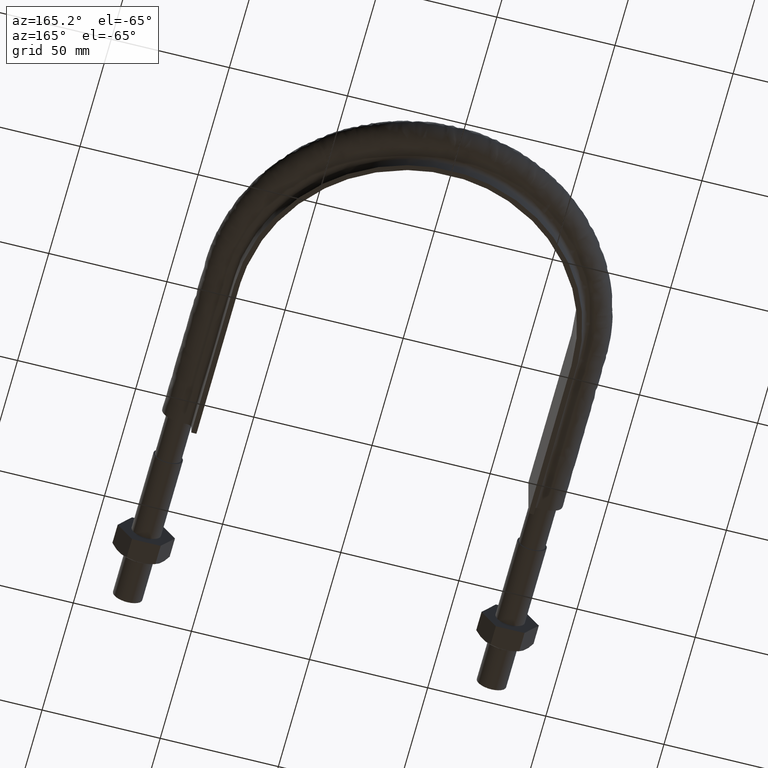
[diagram: clean part render]
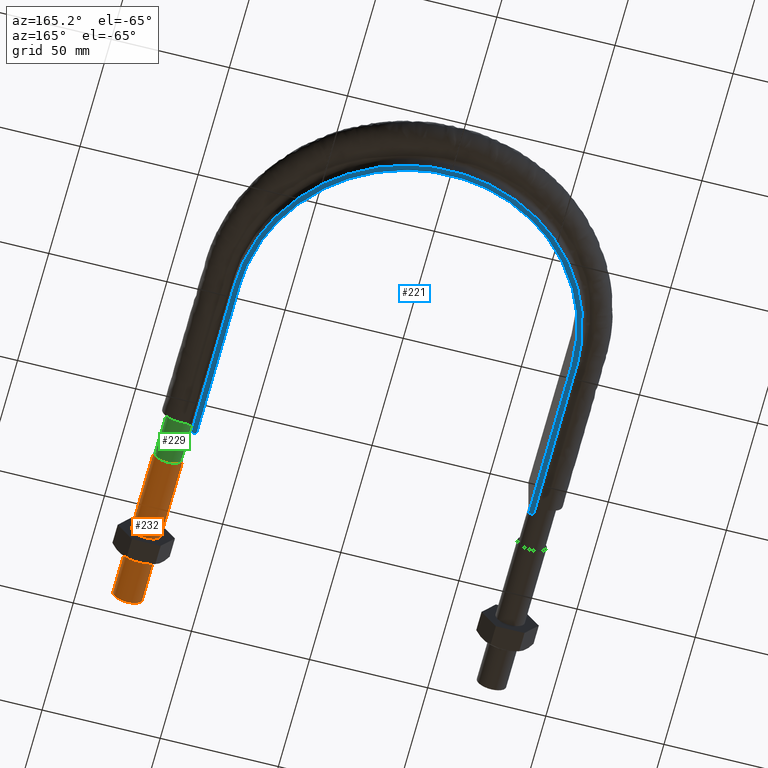
[diagram: same view with three faces highlighted in distinct colors, each labeled with its STEP entity id]
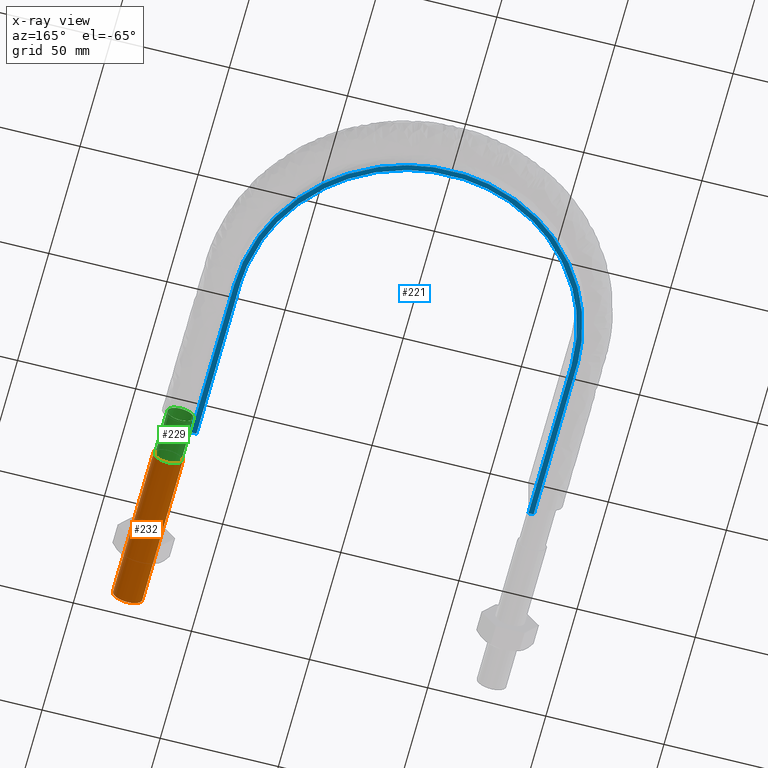
[diagram: x-ray of the same camera — body ghosted, the three highlighted faces saturated]
A machine part, auxiliary view with three faces highlighted in distinct colors.
The next image is the same camera in x-ray (body ghosted, the three faces saturated) — at least one of them is partly hidden behind the body in this view.
Their STEP definitions:

[orange] entity #232 — the highlighted cylindrical surface (bore or boss wall) has radius 6.25 mm, axis along (0, 1, -0).
#232 = ADVANCED_FACE( '', ( #295, #296 ), #297, .T. );
#295 = FACE_OUTER_BOUND( '', #1243, .T. );
#296 = FACE_OUTER_BOUND( '', #1244, .T. );
#297 = CYLINDRICAL_SURFACE( '', #1245, 6.25000000000001 );
#1243 = EDGE_LOOP( '', ( #1422 ) );
#1244 = EDGE_LOOP( '', ( #1423 ) );
#1245 = AXIS2_PLACEMENT_3D( '', #1424, #1425, #1426 );
#1422 = ORIENTED_EDGE( '', *, *, #1633, .T. );
#1423 = ORIENTED_EDGE( '', *, *, #1634, .F. );
#1424 = CARTESIAN_POINT( '', ( 77.0000000000000, 65.0000000000000, -1.98998532496136E-014 ) );
#1425 = DIRECTION( '', ( 2.44921270764475E-016, 1.00000000000000, -3.06151588455594E-016 ) );
#1426 = DIRECTION( '', ( 1.00000000000000, -2.44921270764475E-016, 0.000000000000000 ) );
#1633 = EDGE_CURVE( '', #1745, #1745, #1746, .T. );
#1634 = EDGE_CURVE( '', #1747, #1747, #1748, .T. );
#1745 = VERTEX_POINT( '', #2087 );
#1746 = CIRCLE( '', #2088, 6.25000000000001 );
#1747 = VERTEX_POINT( '', #2089 );
#1748 = CIRCLE( '', #2090, 6.25000000000001 );
#2087 = CARTESIAN_POINT( '', ( 77.0000000000000, 65.0000000000000, -6.25000000000003 ) );
#2088 = AXIS2_PLACEMENT_3D( '', #2345, #2346, #2347 );
#2089 = CARTESIAN_POINT( '', ( 77.0000000000000, -1.57912352356619E-014, -6.25000000000001 ) );
#2090 = AXIS2_PLACEMENT_3D( '', #2348, #2349, #2350 );
#2345 = CARTESIAN_POINT( '', ( 77.0000000000000, 65.0000000000000, -1.98998532496136E-014 ) );
#2346 = DIRECTION( '', ( -2.44921270764475E-016, -1.00000000000000, 3.06151588455594E-016 ) );
#2347 = DIRECTION( '', ( 0.000000000000000, -3.06151588455594E-016, -1.00000000000000 ) );
#2348 = CARTESIAN_POINT( '', ( 77.0000000000000, -1.38777878078145E-014, 1.23259516440783E-029 ) );
#2349 = DIRECTION( '', ( -2.44921270764475E-016, -1.00000000000000, 3.06151588455594E-016 ) );
#2350 = DIRECTION( '', ( 0.000000000000000, -3.06151588455594E-016, -1.00000000000000 ) );

[blue] entity #221 — the highlighted planar face has unit normal (0, 0, 1).
#221 = ADVANCED_FACE( '', ( #266 ), #267, .F. );
#266 = FACE_OUTER_BOUND( '', #543, .T. );
#267 = PLANE( '', #544 );
#543 = EDGE_LOOP( '', ( #1320, #1321, #1322, #1323 ) );
#544 = AXIS2_PLACEMENT_3D( '', #1324, #1325, #1326 );
#1320 = ORIENTED_EDGE( '', *, *, #1605, .F. );
#1321 = ORIENTED_EDGE( '', *, *, #1602, .F. );
#1322 = ORIENTED_EDGE( '', *, *, #1606, .F. );
#1323 = ORIENTED_EDGE( '', *, *, #1607, .F. );
#1324 = CARTESIAN_POINT( '', ( 100.000000000000, 284.710000000000, -15.0000000000000 ) );
#1325 = DIRECTION( '', ( 0.000000000000000, 0.000000000000000, 1.00000000000000 ) );
#1326 = DIRECTION( '', ( 1.00000000000000, 0.000000000000000, 0.000000000000000 ) );
#1602 = EDGE_CURVE( '', #1686, #1681, #1688, .T. );
#1605 = EDGE_CURVE( '', #1681, #1693, #1694, .T. );
#1606 = EDGE_CURVE( '', #1695, #1686, #1696, .T. );
#1607 = EDGE_CURVE( '', #1693, #1695, #1697, .T. );
#1681 = VERTEX_POINT( '', #1829 );
#1686 = VERTEX_POINT( '', #1836 );
#1688 = LINE( '', #1868, #1869 );
#1693 = VERTEX_POINT( '', #1894 );
#1694 = B_SPLINE_CURVE_WITH_KNOTS( '', 3, ( #1895, #1896, #1897, #1898, #1899, #1900, #1901, #1902, #1903, #1904, #1905, #1906, #1907, #1908, #1909, #1910 ), .UNSPECIFIED., .F., .F., ( 4, 3, 1, 1, 1, 1, 1, 1, 3, 4 ), ( -9.00000000000000, -8.00000000000000, -7.00000000000000, -6.00000000000000, -5.00000000000000, -4.00000000000000, -3.00000000000000, -2.00000000000000, -1.00000000000000, 0.000000000000000 ), .UNSPECIFIED. );
#1695 = VERTEX_POINT( '', #1911 );
#1696 = B_SPLINE_CURVE_WITH_KNOTS( '', 3, ( #1912, #1913, #1914, #1915, #1916, #1917, #1918, #1919, #1920, #1921, #1922, #1923, #1924, #1925, #1926, #1927 ), .UNSPECIFIED., .F., .F., ( 4, 3, 1, 1, 1, 1, 1, 1, 3, 4 ), ( 0.000000000000000, 1.00000000000000, 2.00000000000000, 3.00000000000000, 4.00000000000000, 5.00000000000000, 6.00000000000000, 7.00000000000000, 8.00000000000000, 9.00000000000000 ), .UNSPECIFIED. );
#1697 = LINE( '', #1928, #1929 );
#1829 = CARTESIAN_POINT( '', ( -70.2500000000000, 84.7100000000000, -15.0000000000000 ) );
#1836 = CARTESIAN_POINT( '', ( -72.4500000000000, 84.7100000000000, -15.0000000000000 ) );
#1868 = CARTESIAN_POINT( '', ( -100.000000000000, 84.7100000000000, -15.0000000000000 ) );
#1869 = VECTOR( '', #2329, 1000.00000000000 );
#1894 = CARTESIAN_POINT( '', ( 70.2500000000000, 84.7100000000000, -15.0000000000000 ) );
#1895 = CARTESIAN_POINT( '', ( -70.2500000000000, 84.7100000000000, -15.0000000000000 ) );
#1896 = CARTESIAN_POINT( '', ( -70.2500000000000, 107.726666666667, -15.0000000000000 ) );
#1897 = CARTESIAN_POINT( '', ( -70.2500000000000, 130.743333333333, -15.0000000000000 ) );
#1898 = CARTESIAN_POINT( '', ( -70.2500000000000, 153.760000000000, -15.0000000000000 ) );
#1899 = CARTESIAN_POINT( '', ( -70.2500000000000, 164.249418134732, -15.0000000000000 ) );
#1900 = CARTESIAN_POINT( '', ( -65.4537147955432, 185.288971927909, -15.0000000000000 ) );
#1901 = CARTESIAN_POINT( '', ( -45.2953760364684, 210.556467088273, -15.0000000000000 ) );
#1902 = CARTESIAN_POINT( '', ( -16.1657325420394, 224.587129579273, -15.0000000000000 ) );
#1903 = CARTESIAN_POINT( '', ( 16.1657325420395, 224.587129579273, -15.0000000000000 ) );
#1904 = CARTESIAN_POINT( '', ( 45.2953760364684, 210.556467088273, -15.0000000000000 ) );
#1905 = CARTESIAN_POINT( '', ( 65.4537147955432, 185.288971927909, -15.0000000000000 ) );
#1906 = CARTESIAN_POINT( '', ( 70.2500000000000, 164.249418134732, -15.0000000000000 ) );
#1907 = CARTESIAN_POINT( '', ( 70.2500000000000, 153.760000000000, -15.0000000000000 ) );
#1908 = CARTESIAN_POINT( '', ( 70.2500000000000, 130.743333333333, -15.0000000000000 ) );
#1909 = CARTESIAN_POINT( '', ( 70.2500000000000, 107.726666666667, -15.0000000000000 ) );
#1910 = CARTESIAN_POINT( '', ( 70.2500000000000, 84.7100000000000, -15.0000000000000 ) );
#1911 = CARTESIAN_POINT( '', ( 72.4500000000000, 84.7100000000000, -15.0000000000000 ) );
#1912 = CARTESIAN_POINT( '', ( 72.4500000000000, 84.7100000000000, -15.0000000000000 ) );
#1913 = CARTESIAN_POINT( '', ( 72.4500000000000, 107.726666666667, -15.0000000000000 ) );
#1914 = CARTESIAN_POINT( '', ( 72.4500000000000, 130.743333333333, -15.0000000000000 ) );
#1915 = CARTESIAN_POINT( '', ( 72.4500000000000, 153.760000000000, -15.0000000000000 ) );
#1916 = CARTESIAN_POINT( '', ( 72.4500000000000, 164.584175230504, -15.0000000000000 ) );
#1917 = CARTESIAN_POINT( '', ( 67.5035108460798, 186.273453800089, -15.0000000000000 ) );
#1918 = CARTESIAN_POINT( '', ( 46.7138789159023, 212.335910248336, -15.0000000000000 ) );
#1919 = CARTESIAN_POINT( '', ( 16.6719903583027, 226.805050635421, -15.0000000000000 ) );
#1920 = CARTESIAN_POINT( '', ( -16.6719903583025, 226.805050635421, -15.0000000000000 ) );
#1921 = CARTESIAN_POINT( '', ( -46.7138789159022, 212.335910248336, -15.0000000000000 ) );
#1922 = CARTESIAN_POINT( '', ( -67.5035108460798, 186.273453800089, -15.0000000000000 ) );
#1923 = CARTESIAN_POINT( '', ( -72.4500000000000, 164.584175230504, -15.0000000000000 ) );
#1924 = CARTESIAN_POINT( '', ( -72.4500000000000, 153.760000000000, -15.0000000000000 ) );
#1925 = CARTESIAN_POINT( '', ( -72.4500000000000, 130.743333333333, -15.0000000000000 ) );
#1926 = CARTESIAN_POINT( '', ( -72.4500000000000, 107.726666666667, -15.0000000000000 ) );
#1927 = CARTESIAN_POINT( '', ( -72.4500000000000, 84.7100000000000, -15.0000000000000 ) );
#1928 = CARTESIAN_POINT( '', ( -100.000000000000, 84.7100000000000, -15.0000000000000 ) );
#1929 = VECTOR( '', #2330, 1000.00000000000 );
#2329 = DIRECTION( '', ( 1.00000000000000, -1.22460635382238E-016, 0.000000000000000 ) );
#2330 = DIRECTION( '', ( 1.00000000000000, -1.22460635382238E-016, 0.000000000000000 ) );

[green] entity #229 — the highlighted cylindrical surface (bore or boss wall) has radius 5.6 mm, axis along (0, 1, -0).
#229 = ADVANCED_FACE( '', ( #286, #287 ), #288, .T. );
#286 = FACE_OUTER_BOUND( '', #1234, .T. );
#287 = FACE_OUTER_BOUND( '', #1235, .T. );
#288 = CYLINDRICAL_SURFACE( '', #1236, 5.59999999999999 );
#1234 = EDGE_LOOP( '', ( #1400, #1401, #1402, #1403, #1404, #1405, #1406, #1407 ) );
#1235 = EDGE_LOOP( '', ( #1408 ) );
#1236 = AXIS2_PLACEMENT_3D( '', #1409, #1410, #1411 );
#1400 = ORIENTED_EDGE( '', *, *, #1627, .F. );
#1401 = ORIENTED_EDGE( '', *, *, #1626, .F. );
#1402 = ORIENTED_EDGE( '', *, *, #1625, .F. );
#1403 = ORIENTED_EDGE( '', *, *, #1624, .F. );
#1404 = ORIENTED_EDGE( '', *, *, #1631, .F. );
#1405 = ORIENTED_EDGE( '', *, *, #1630, .F. );
#1406 = ORIENTED_EDGE( '', *, *, #1629, .F. );
#1407 = ORIENTED_EDGE( '', *, *, #1628, .F. );
#1408 = ORIENTED_EDGE( '', *, *, #1632, .T. );
#1409 = CARTESIAN_POINT( '', ( 77.0000000000000, 84.7100000000000, -1.46064922852164E-014 ) );
#1410 = DIRECTION( '', ( 2.44921270764475E-016, 1.00000000000000, -3.06151588455594E-016 ) );
#1411 = DIRECTION( '', ( 1.00000000000000, -2.44921270764475E-016, 0.000000000000000 ) );
#1624 = EDGE_CURVE( '', #1727, #1728, #1729, .T. );
#1625 = EDGE_CURVE( '', #1728, #1730, #1731, .T. );
#1626 = EDGE_CURVE( '', #1730, #1732, #1733, .T. );
#1627 = EDGE_CURVE( '', #1732, #1734, #1735, .T. );
#1628 = EDGE_CURVE( '', #1734, #1736, #1737, .T. );
#1629 = EDGE_CURVE( '', #1736, #1738, #1739, .T. );
#1630 = EDGE_CURVE( '', #1738, #1740, #1741, .T. );
#1631 = EDGE_CURVE( '', #1740, #1727, #1742, .T. );
#1632 = EDGE_CURVE( '', #1743, #1743, #1744, .F. );
#1727 = VERTEX_POINT( '', #2045 );
#1728 = VERTEX_POINT( '', #2046 );
#1729 = B_SPLINE_CURVE_WITH_KNOTS( '', 3, ( #2047, #2048, #2049, #2050 ), .UNSPECIFIED., .F., .F., ( 4, 4 ), ( 0.000000000000000, 1.00000000000000 ), .UNSPECIFIED. );
#1730 = VERTEX_POINT( '', #2051 );
#1731 = B_SPLINE_CURVE_WITH_KNOTS( '', 3, ( #2052, #2053, #2054, #2055 ), .UNSPECIFIED., .F., .F., ( 4, 4 ), ( 0.000000000000000, 1.00000000000000 ), .UNSPECIFIED. );
#1732 = VERTEX_POINT( '', #2056 );
#1733 = B_SPLINE_CURVE_WITH_KNOTS( '', 3, ( #2057, #2058, #2059, #2060 ), .UNSPECIFIED., .F., .F., ( 4, 4 ), ( 0.000000000000000, 1.00000000000000 ), .UNSPECIFIED. );
#1734 = VERTEX_POINT( '', #2061 );
#1735 = B_SPLINE_CURVE_WITH_KNOTS( '', 3, ( #2062, #2063, #2064, #2065 ), .UNSPECIFIED., .F., .F., ( 4, 4 ), ( 0.000000000000000, 1.00000000000000 ), .UNSPECIFIED. );
#1736 = VERTEX_POINT( '', #2066 );
#1737 = B_SPLINE_CURVE_WITH_KNOTS( '', 3, ( #2067, #2068, #2069, #2070 ), .UNSPECIFIED., .F., .F., ( 4, 4 ), ( 0.000000000000000, 1.00000000000000 ), .UNSPECIFIED. );
#1738 = VERTEX_POINT( '', #2071 );
#1739 = B_SPLINE_CURVE_WITH_KNOTS( '', 3, ( #2072, #2073, #2074, #2075 ), .UNSPECIFIED., .F., .F., ( 4, 4 ), ( 0.000000000000000, 1.00000000000000 ), .UNSPECIFIED. );
#1740 = VERTEX_POINT( '', #2076 );
#1741 = B_SPLINE_CURVE_WITH_KNOTS( '', 3, ( #2077, #2078, #2079, #2080 ), .UNSPECIFIED., .F., .F., ( 4, 4 ), ( 0.000000000000000, 1.00000000000000 ), .UNSPECIFIED. );
#1742 = B_SPLINE_CURVE_WITH_KNOTS( '', 3, ( #2081, #2082, #2083, #2084 ), .UNSPECIFIED., .F., .F., ( 4, 4 ), ( 0.000000000000000, 1.00000000000000 ), .UNSPECIFIED. );
#1743 = VERTEX_POINT( '', #2085 );
#1744 = CIRCLE( '', #2086, 5.59999999999999 );
#2045 = CARTESIAN_POINT( '', ( 71.4000000000000, 84.7100000000000, -6.20949125533798E-014 ) );
#2046 = CARTESIAN_POINT( '', ( 73.0402020253557, 84.7100000000000, 3.95979797464497 ) );
#2047 = CARTESIAN_POINT( '', ( 71.4000000000000, 84.7100000000000, -1.08420217248550E-016 ) );
#2048 = CARTESIAN_POINT( '', ( 71.4000000000000, 84.7100000000000, 1.46274169979710 ) );
#2049 = CARTESIAN_POINT( '', ( 72.0058874503047, 84.7100000000000, 2.92548339959419 ) );
#2050 = CARTESIAN_POINT( '', ( 73.0402020253557, 84.7100000000000, 3.95979797464497 ) );
#2051 = CARTESIAN_POINT( '', ( 77.0000000000252, 84.7100000000000, 5.59999999999998 ) );
#2052 = CARTESIAN_POINT( '', ( 73.0402020253795, 84.7100000000000, 3.95979797466879 ) );
#2053 = CARTESIAN_POINT( '', ( 74.0745166004407, 84.7100000000000, 4.99411254971660 ) );
#2054 = CARTESIAN_POINT( '', ( 75.5372583002534, 84.7100000000000, 5.60000000001612 ) );
#2055 = CARTESIAN_POINT( '', ( 77.0000000000622, 84.7100000000000, 5.59999999999960 ) );
#2056 = CARTESIAN_POINT( '', ( 80.9597979746576, 84.7100000000000, 3.95979797463169 ) );
#2057 = CARTESIAN_POINT( '', ( 77.0000000000252, 84.7100000000000, 5.59999999999999 ) );
#2058 = CARTESIAN_POINT( '', ( 78.4627416998259, 84.7100000000000, 5.59999999999304 ) );
#2059 = CARTESIAN_POINT( '', ( 79.9254833996285, 84.7100000000000, 4.99411254967764 ) );
#2060 = CARTESIAN_POINT( '', ( 80.9597979746768, 84.7100000000000, 3.95979797461214 ) );
#2061 = CARTESIAN_POINT( '', ( 82.6000000000000, 84.7100000000000, -1.46064922852164E-014 ) );
#2062 = CARTESIAN_POINT( '', ( 80.9597979746576, 84.7100000000000, 3.95979797463173 ) );
#2063 = CARTESIAN_POINT( '', ( 81.9941125497079, 84.7100000000000, 2.92548339957432 ) );
#2064 = CARTESIAN_POINT( '', ( 82.6000000000100, 84.7100000000000, 1.46274169976691 ) );
#2065 = CARTESIAN_POINT( '', ( 82.5999999999998, 84.7100000000000, -3.79574263879876E-011 ) );
#2066 = CARTESIAN_POINT( '', ( 80.9597979746445, 84.7100000000000, -3.95979797464487 ) );
#2067 = CARTESIAN_POINT( '', ( 82.6000000000000, 84.7100000000000, -1.81346772843695E-011 ) );
#2068 = CARTESIAN_POINT( '', ( 82.5999999999950, 84.7100000000000, -1.46274169981350 ) );
#2069 = CARTESIAN_POINT( '', ( 81.9941125496862, 84.7100000000000, -2.92548339961012 ) );
#2070 = CARTESIAN_POINT( '', ( 80.9597979746304, 84.7100000000000, -3.95979797465860 ) );
#2071 = CARTESIAN_POINT( '', ( 76.9999999999999, 84.7100000000000, -5.60000000000001 ) );
#2072 = CARTESIAN_POINT( '', ( 80.9597979746445, 84.7100000000000, -3.95979797464487 ) );
#2073 = CARTESIAN_POINT( '', ( 79.9254833995937, 84.7100000000000, -4.99411254969557 ) );
#2074 = CARTESIAN_POINT( '', ( 78.4627416997966, 84.7100000000000, -5.60000000000009 ) );
#2075 = CARTESIAN_POINT( '', ( 76.9999999999996, 84.7100000000000, -5.59999999999999 ) );
#2076 = CARTESIAN_POINT( '', ( 73.0402020253626, 84.7100000000000, -3.95979797465190 ) );
#2077 = CARTESIAN_POINT( '', ( 77.0000000000000, 84.7100000000000, -5.59999999999999 ) );
#2078 = CARTESIAN_POINT( '', ( 75.5372583002065, 84.7100000000000, -5.59999999999999 ) );
#2079 = CARTESIAN_POINT( '', ( 74.0745166004129, 84.7100000000000, -4.99411254969824 ) );
#2080 = CARTESIAN_POINT( '', ( 73.0402020253626, 84.7100000000000, -3.95979797465188 ) );
#2081 = CARTESIAN_POINT( '', ( 73.0402020253626, 84.7100000000000, -3.95979797465189 ) );
#2082 = CARTESIAN_POINT( '', ( 72.0058874503074, 84.7100000000000, -2.92548339960072 ) );
#2083 = CARTESIAN_POINT( '', ( 71.4000000000007, 84.7100000000000, -1.46274169980207 ) );
#2084 = CARTESIAN_POINT( '', ( 71.3999999999999, 84.7100000000000, -3.69474416339610E-012 ) );
#2085 = CARTESIAN_POINT( '', ( 77.0000000000000, 65.0000000000000, -5.60000000000000 ) );
#2086 = AXIS2_PLACEMENT_3D( '', #2342, #2343, #2344 );
#2342 = CARTESIAN_POINT( '', ( 77.0000000000000, 65.0000000000000, -8.57224447675665E-015 ) );
#2343 = DIRECTION( '', ( -2.44921270764475E-016, -1.00000000000000, 3.06151588455594E-016 ) );
#2344 = DIRECTION( '', ( 0.000000000000000, -3.06151588455594E-016, -1.00000000000000 ) );